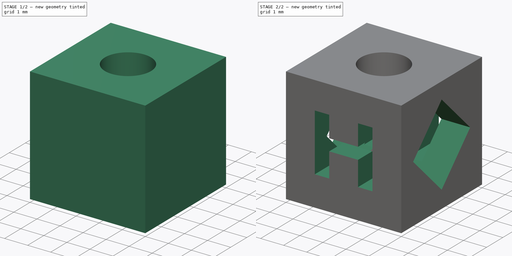
[diagram: build sequence overview — one tinted view per stage of 2, left to right]
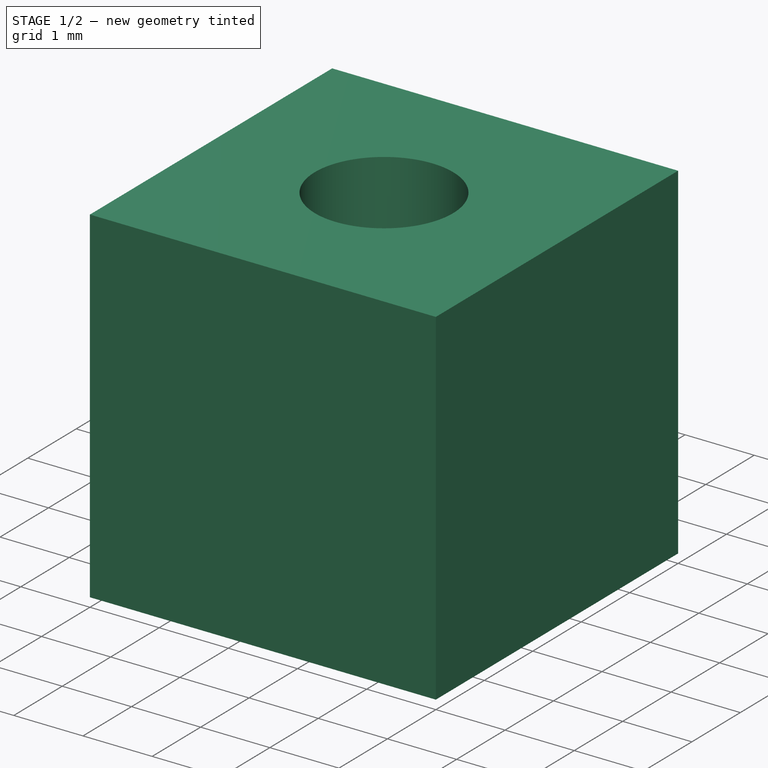
[diagram: stage 1 of 2 — iso view after this stage's code; geometry added in this stage tinted green]
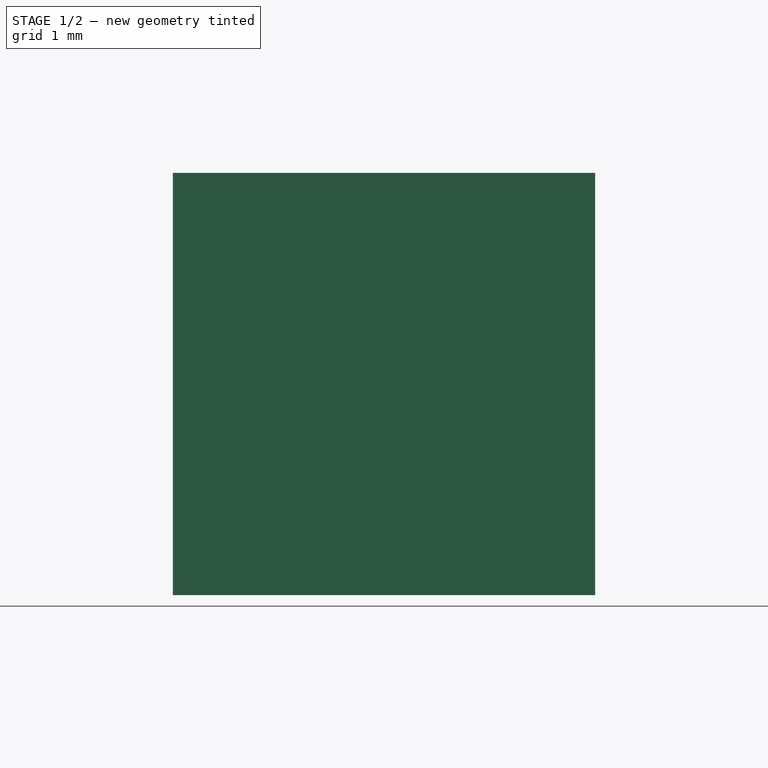
[diagram: stage 1 of 2 — front view after this stage's code; geometry added in this stage tinted green]
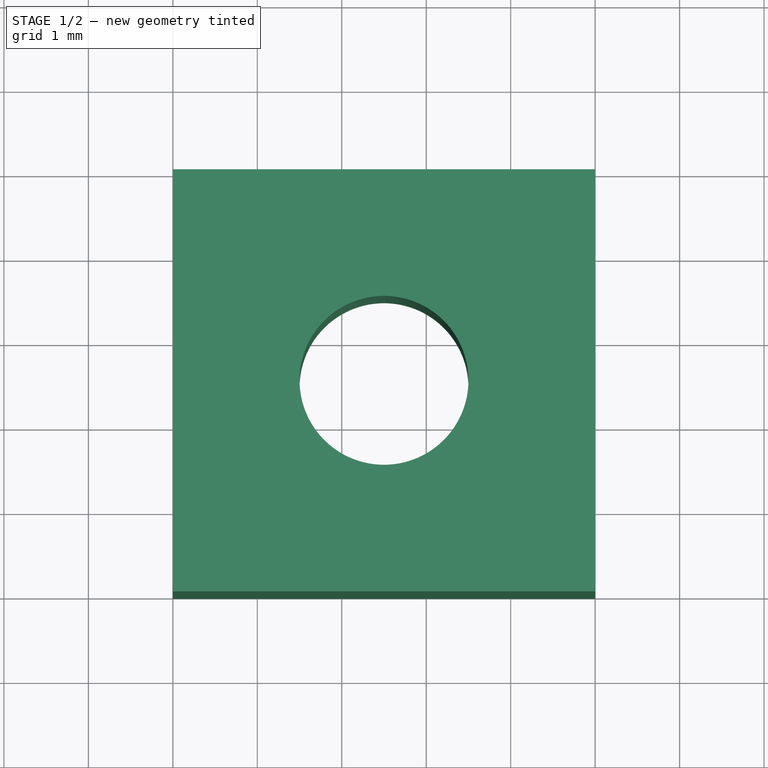
[diagram: stage 1 of 2 — top view after this stage's code; geometry added in this stage tinted green]
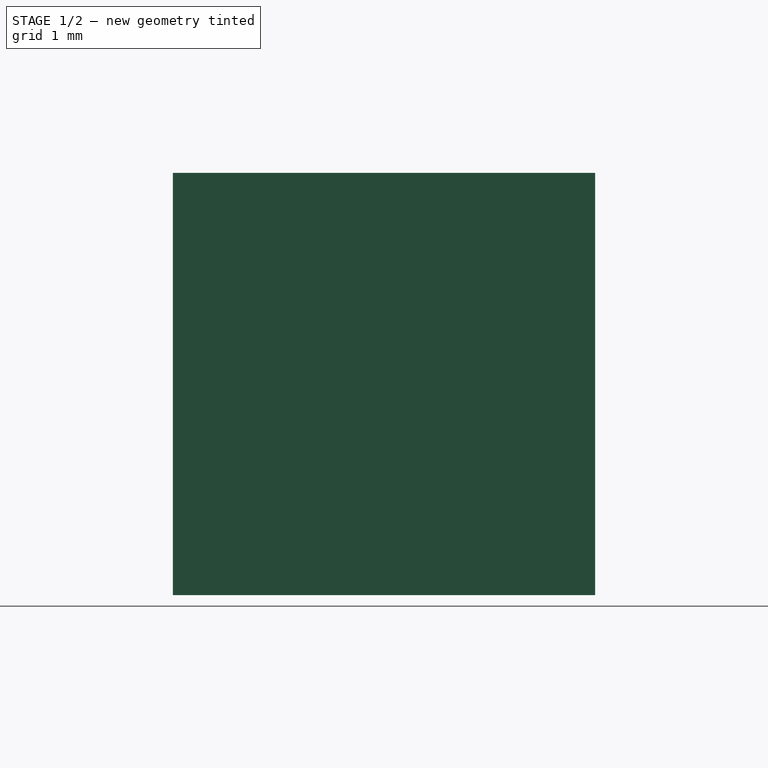
[diagram: stage 1 of 2 — right view after this stage's code; geometry added in this stage tinted green]
FCSTD DOCUMENT  (FreeCAD 0.17R13528 (Git))
Label: funwürfel
License: All rights reserved
LicenseURL: http://en.wikipedia.org/wiki/All_rights_reserved
objects: Sketcher::SketchObject×2, PartDesign::Pocket×2, PartDesign::AdditiveBox×1, PartDesign::SubtractiveBox×1, PartDesign::Body×1
note: 11 computed .brp shape members not serialized (recipe doc carries the construction recipe); baked Part::Feature solids carry a one-line shape summary decoded from their .brp

FEATURE [PartDesign::AdditiveBox] Box
  AttacherType = Attacher::AttachEngine3D
  Height = 5
  Length = 5
  MapMode = 5
  Support = -> [XY_Plane]
  Width = 5
FEATURE [Sketcher::SketchObject] Sketch
  MapMode = 5
  Support = -> [XY_Plane]
  sketch-geometry (1):
    g0: Circle CenterX=2.5 CenterY=2.5 CenterZ=0 NormalX=0 NormalY=0 NormalZ=1 AngleXU=0 Radius=1
  constraints (3):
    c: Radius(g0) = 1
    c: DistanceY(g-1,g0) = 2.5
    c: DistanceX(g-1,g0) = 2.5
FEATURE [PartDesign::Pocket] Pocket
  BaseFeature = -> Box
  Length = 15
  Length2 = 100
  Midplane = true
  Profile = -> Sketch
  Type = 0
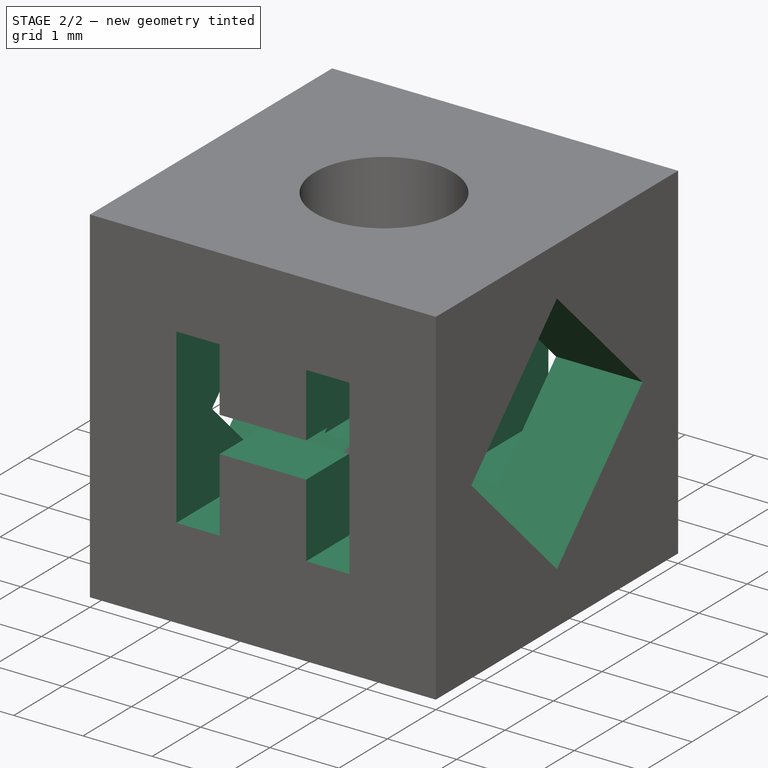
[diagram: stage 2 of 2 — iso view after this stage's code; geometry added in this stage tinted green]
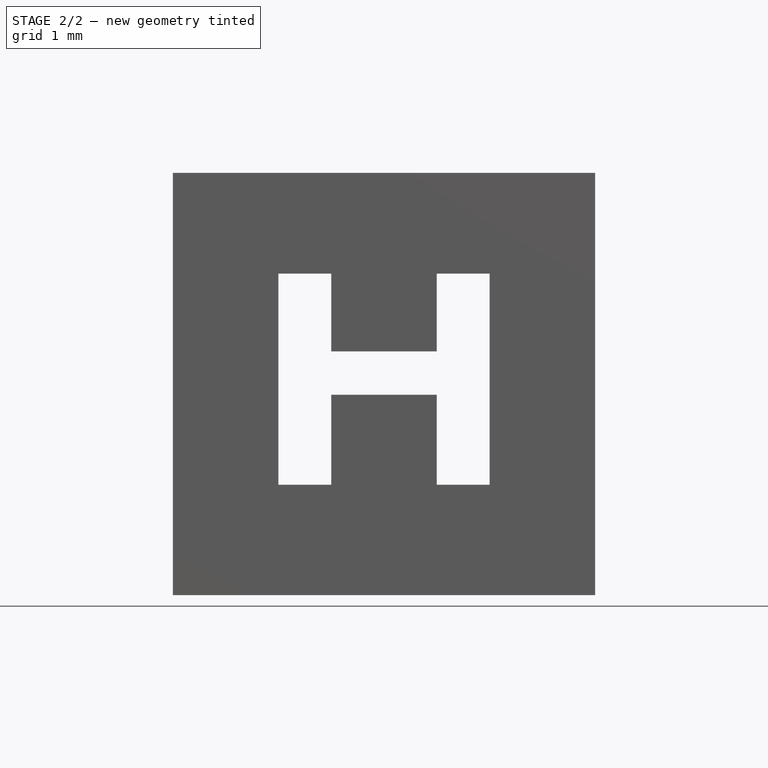
[diagram: stage 2 of 2 — front view after this stage's code; geometry added in this stage tinted green]
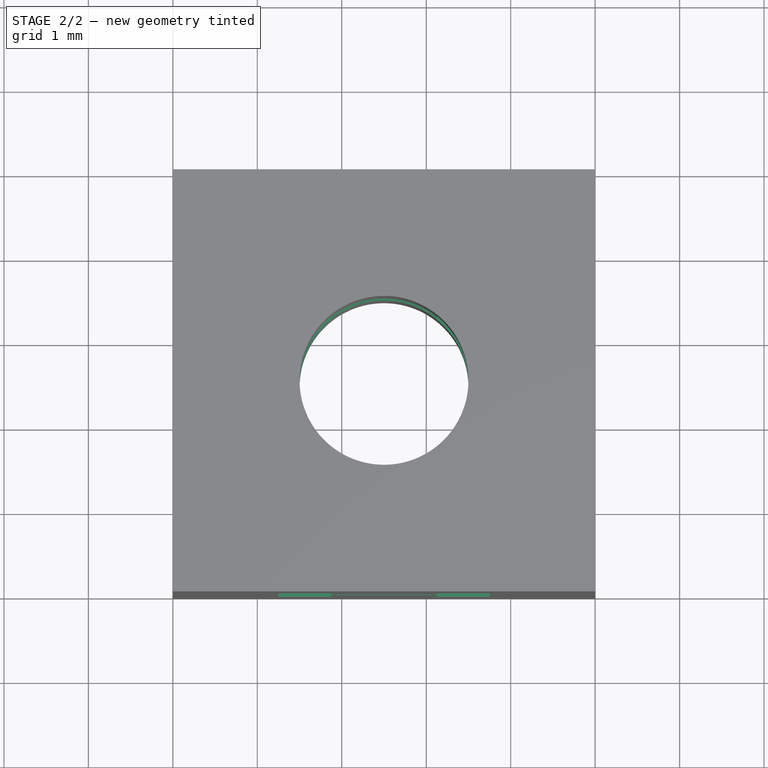
[diagram: stage 2 of 2 — top view after this stage's code; geometry added in this stage tinted green]
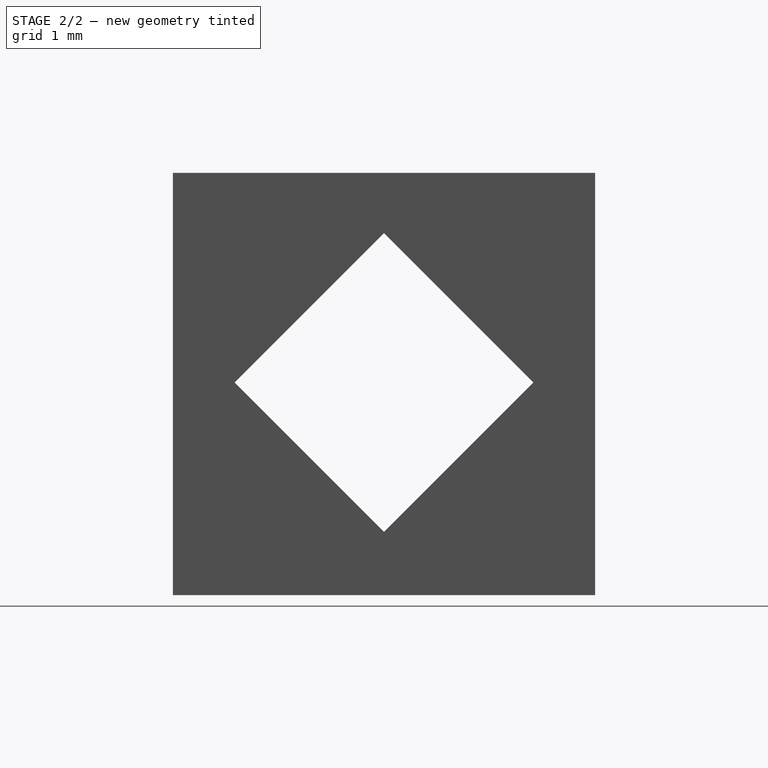
[diagram: stage 2 of 2 — right view after this stage's code; geometry added in this stage tinted green]
FEATURE [Sketcher::SketchObject] Sketch001
  MapMode = 5
  Placement = pos=(0,0,0) rot=(1,0,0;1.5708rad)
  Support = -> [XZ_Plane]
  sketch-geometry (12):
    g0: LineSegment StartX=1.25 StartY=3.80645 StartZ=0 EndX=1.25 EndY=1.30645 EndZ=0
    g1: LineSegment StartX=1.25 StartY=1.30645 StartZ=0 EndX=1.875 EndY=1.30645 EndZ=0
    g2: LineSegment StartX=1.875 StartY=1.30645 StartZ=0 EndX=1.875 EndY=2.37253 EndZ=0
    g3: LineSegment StartX=1.875 StartY=2.37253 StartZ=0 EndX=3.125 EndY=2.37253 EndZ=0
    g4: LineSegment StartX=3.125 StartY=2.37253 StartZ=0 EndX=3.125 EndY=1.30645 EndZ=0
    g5: LineSegment StartX=3.125 StartY=1.30645 StartZ=0 EndX=3.75 EndY=1.30645 EndZ=0
    g6: LineSegment StartX=3.75 StartY=1.30645 StartZ=0 EndX=3.75 EndY=3.80645 EndZ=0
    g7: LineSegment StartX=3.75 StartY=3.80645 StartZ=0 EndX=3.125 EndY=3.80645 EndZ=0
    g8: LineSegment StartX=3.125 StartY=3.80645 StartZ=0 EndX=3.125 EndY=2.8857 EndZ=0
    g9: LineSegment StartX=3.125 StartY=2.8857 StartZ=0 EndX=1.875 EndY=2.8857 EndZ=0
    g10: LineSegment StartX=1.875 StartY=2.8857 StartZ=0 EndX=1.875 EndY=3.80645 EndZ=0
    g11: LineSegment StartX=1.875 StartY=3.80645 StartZ=0 EndX=1.25 EndY=3.80645 EndZ=0
  constraints (33):
    c: Vertical(g0)
    c: Coincident(g0,g1)
    c: Coincident(g1,g2)
    c: Vertical(g2)
    c: Coincident(g2,g3)
    c: Horizontal(g3)
    c: Coincident(g3,g4)
    c: Vertical(g4)
    c: Coincident(g4,g5)
    c: Coincident(g5,g6)
    c: Vertical(g6)
    c: Coincident(g6,g7)
    c: Coincident(g7,g8)
    c: Vertical(g8)
    c: Coincident(g8,g9)
    c: Coincident(g9,g10)
    c: Coincident(g10,g11)
    c: Coincident(g11,g0)
    c: Equal(g6,g0)
    c: Equal(g7,g5)
    c: Equal(g11,g1)
    c: DistanceY(g0,g0) = 2.5
    c: DistanceX(g11,g11) = 0.625
    c: DistanceX(g7,g7) = 0.625
    c: Equal(g9,g3)
    c: DistanceX(g9,g9) = 1.25
    c: Angle(g8,g7) = 1.5708
    c: Angle(g6,g5) = 1.5708
    c: Angle(g2,g1) = 1.5708
    c: Angle(g11,g10) = 1.5708
    c: Angle(g9,g10) = 1.5708
    c: Horizontal(g10,g7)
    c: DistanceX(g-1,g0) = 1.25
FEATURE [PartDesign::Pocket] Pocket001
  BaseFeature = -> Pocket
  Length = 5
  Length2 = 100
  Profile = -> Sketch001
  Type = 0
FEATURE [PartDesign::SubtractiveBox] Box001
  AttacherType = Attacher::AttachEngine3D
  AttachmentOffset = pos=(2.5,0.75,0) rot=(0,0,1;0.785398rad)
  BaseFeature = -> Pocket001
  Height = 5
  Length = 2.5
  MapMode = 5
  Placement = pos=(0,2.5,0.75) rot=(0.678598,0.281085,0.678598;2.59356rad)
  Support = -> [YZ_Plane]
  Width = 2.5
FEATURE [PartDesign::Body] Body
  Group = -> [Box,Sketch,Pocket,Sketch001,Pocket001,Box001]
  Origin = -> Origin
  Tip = -> Box001
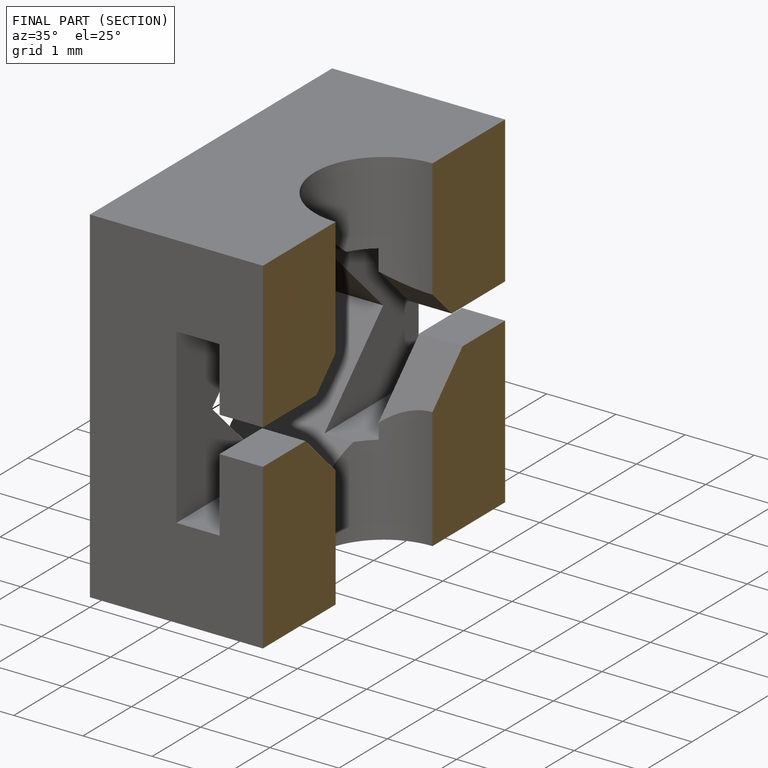
[diagram: finished part — half-section view (interior)]
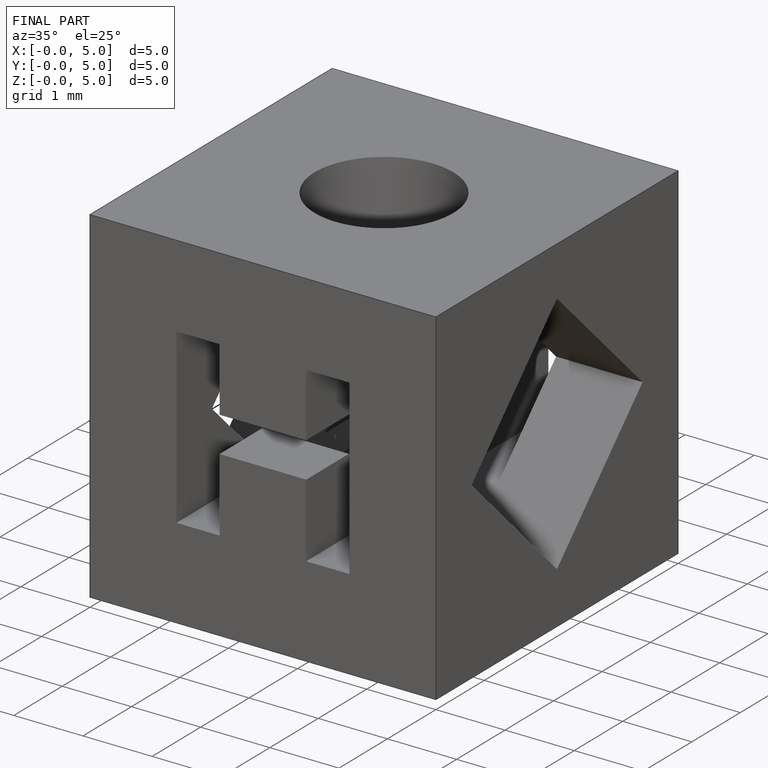
[diagram: finished part — iso view with bounding-box wireframe]
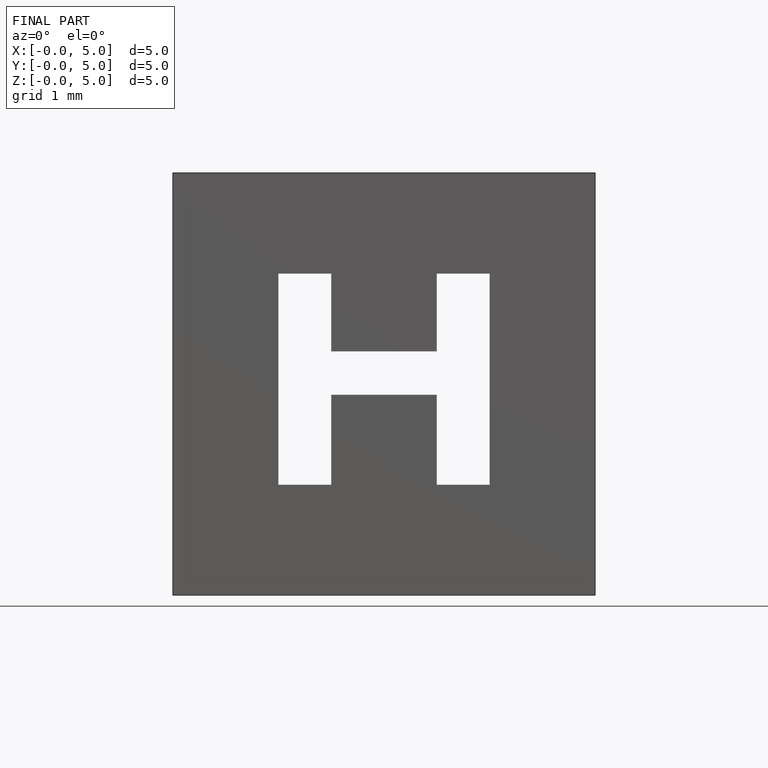
[diagram: finished part — front view with bounding-box wireframe]
